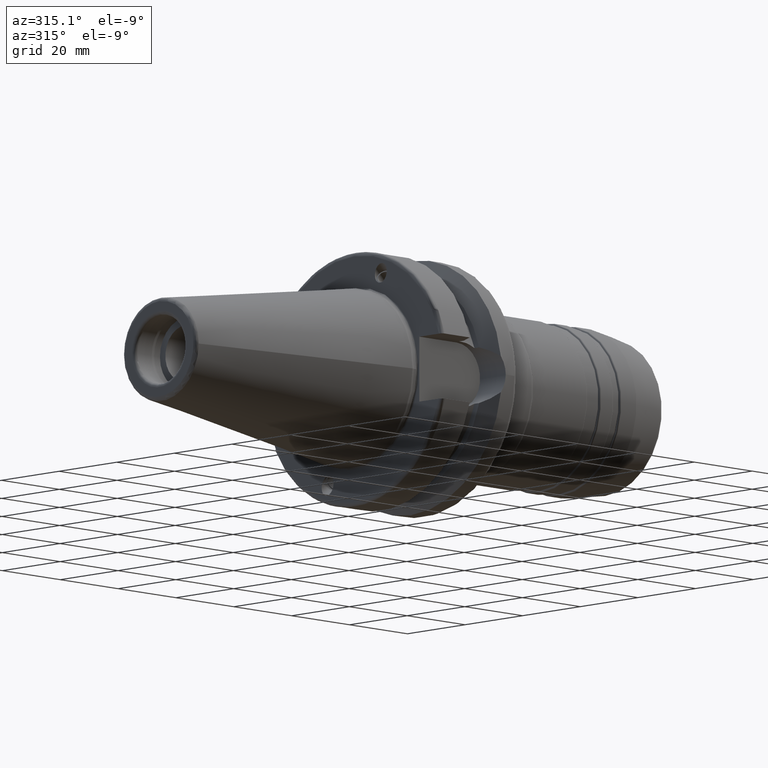
[diagram: clean part render]
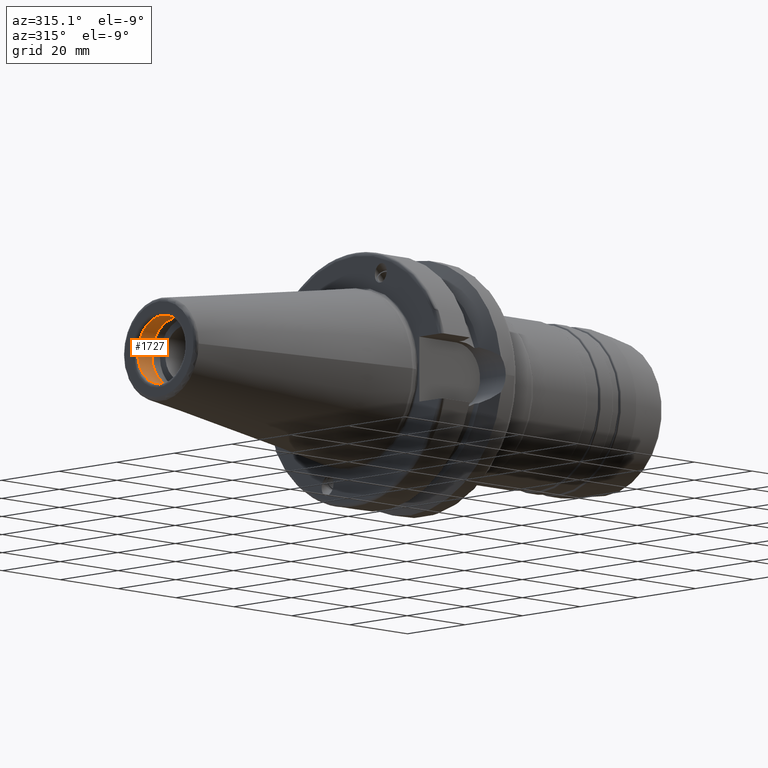
[diagram: same view with one face highlighted and labeled with its STEP entity id]
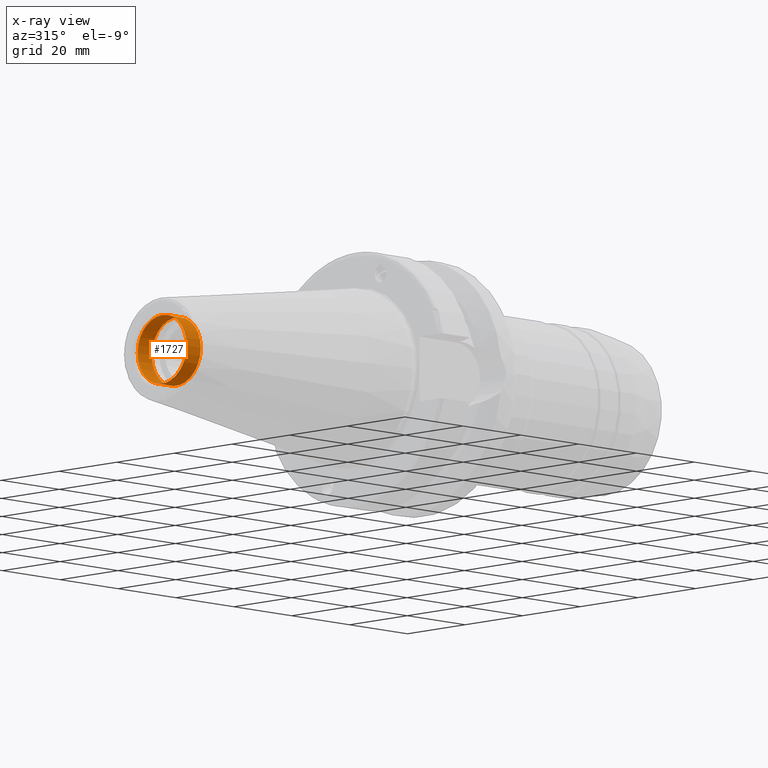
[diagram: x-ray of the same camera — body ghosted, the highlighted face saturated]
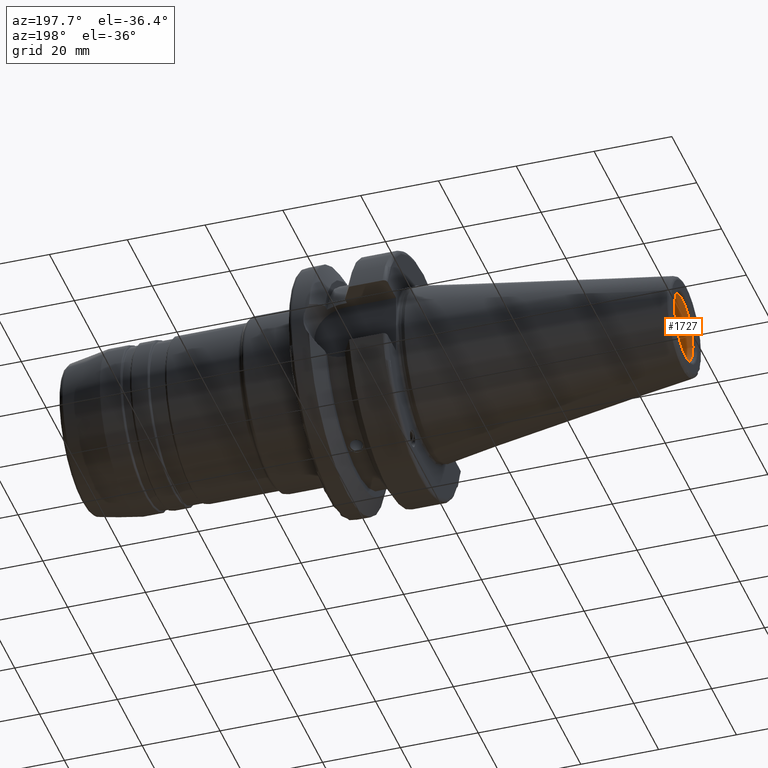
[diagram: same view with one face highlighted and labeled with its STEP entity id]
A machine part, auxiliary view. The second image highlights one B-rep face of the part: STEP entity #1727.
The next image is the same camera in x-ray: the body ghosted, the highlighted face saturated — about 0% of this face is hidden behind the body in this view.
A second angle (auxiliary view) of the same face is appended — the face is thin or edge-on in the first view.
In plain terms, the highlighted cylindrical surface (bore or boss wall) has radius 8.5 mm, axis along (1, 0, 0).
Its self-contained STEP definition (entity closure, byte-faithful):
#208=FACE_OUTER_BOUND('',#310,.T.);
#310=EDGE_LOOP('',(#1521,#1522,#1523,#1524,#1525,#1526,#1527));
#397=LINE('',#3342,#467);
#467=VECTOR('',#2529,8.5);
#594=CIRCLE('',#1978,8.5);
#595=CIRCLE('',#1979,8.5);
#596=CIRCLE('',#1981,8.5);
#597=CIRCLE('',#1982,8.5);
#598=CIRCLE('',#1983,8.5);
#792=VERTEX_POINT('',#3335);
#793=VERTEX_POINT('',#3337);
#794=VERTEX_POINT('',#3341);
#795=VERTEX_POINT('',#3343);
#796=VERTEX_POINT('',#3345);
#1047=EDGE_CURVE('',#793,#792,#594,.T.);
#1048=EDGE_CURVE('',#792,#793,#595,.T.);
#1049=EDGE_CURVE('',#792,#794,#397,.T.);
#1050=EDGE_CURVE('',#795,#794,#596,.T.);
#1051=EDGE_CURVE('',#796,#795,#597,.T.);
#1052=EDGE_CURVE('',#794,#796,#598,.T.);
#1521=ORIENTED_EDGE('',*,*,#1047,.T.);
#1522=ORIENTED_EDGE('',*,*,#1049,.T.);
#1523=ORIENTED_EDGE('',*,*,#1050,.F.);
#1524=ORIENTED_EDGE('',*,*,#1051,.F.);
#1525=ORIENTED_EDGE('',*,*,#1052,.F.);
#1526=ORIENTED_EDGE('',*,*,#1049,.F.);
#1527=ORIENTED_EDGE('',*,*,#1048,.T.);
#1649=CYLINDRICAL_SURFACE('',#1980,8.5);
#1727=ADVANCED_FACE('',(#208),#1649,.F.);
#1978=AXIS2_PLACEMENT_3D('',#3338,#2523,#2524);
#1979=AXIS2_PLACEMENT_3D('',#3339,#2525,#2526);
#1980=AXIS2_PLACEMENT_3D('',#3340,#2527,#2528);
#1981=AXIS2_PLACEMENT_3D('',#3344,#2530,#2531);
#1982=AXIS2_PLACEMENT_3D('',#3346,#2532,#2533);
#1983=AXIS2_PLACEMENT_3D('',#3347,#2534,#2535);
#2523=DIRECTION('center_axis',(1.,0.,0.));
#2524=DIRECTION('ref_axis',(0.,0.,-1.));
#2525=DIRECTION('center_axis',(1.,0.,0.));
#2526=DIRECTION('ref_axis',(0.,0.,-1.));
#2527=DIRECTION('center_axis',(1.,0.,0.));
#2528=DIRECTION('ref_axis',(0.,1.,0.));
#2529=DIRECTION('',(-1.,0.,0.));
#2530=DIRECTION('center_axis',(1.,0.,0.));
#2531=DIRECTION('ref_axis',(0.,0.,-1.));
#2532=DIRECTION('center_axis',(1.,0.,0.));
#2533=DIRECTION('ref_axis',(0.,0.,-1.));
#2534=DIRECTION('center_axis',(1.,0.,0.));
#2535=DIRECTION('ref_axis',(0.,0.,-1.));
#3335=CARTESIAN_POINT('',(-59.5196152422707,-8.5,-1.04094977927525E-15));
#3337=CARTESIAN_POINT('',(-59.5196152422707,8.5,0.));
#3338=CARTESIAN_POINT('Origin',(-59.5196152422707,0.,0.));
#3339=CARTESIAN_POINT('Origin',(-59.5196152422707,0.,0.));
#3340=CARTESIAN_POINT('Origin',(-61.9598076211354,0.,0.));
#3341=CARTESIAN_POINT('',(-64.4,-8.5,-1.04094977927525E-15));
#3342=CARTESIAN_POINT('',(-61.9598076211354,-8.5,-1.04094977927525E-15));
#3343=CARTESIAN_POINT('',(-64.4,-1.04094977927525E-15,8.5));
#3344=CARTESIAN_POINT('Origin',(-64.4,0.,0.));
#3345=CARTESIAN_POINT('',(-64.4,8.5,0.));
#3346=CARTESIAN_POINT('Origin',(-64.4,0.,0.));
#3347=CARTESIAN_POINT('Origin',(-64.4,0.,0.));